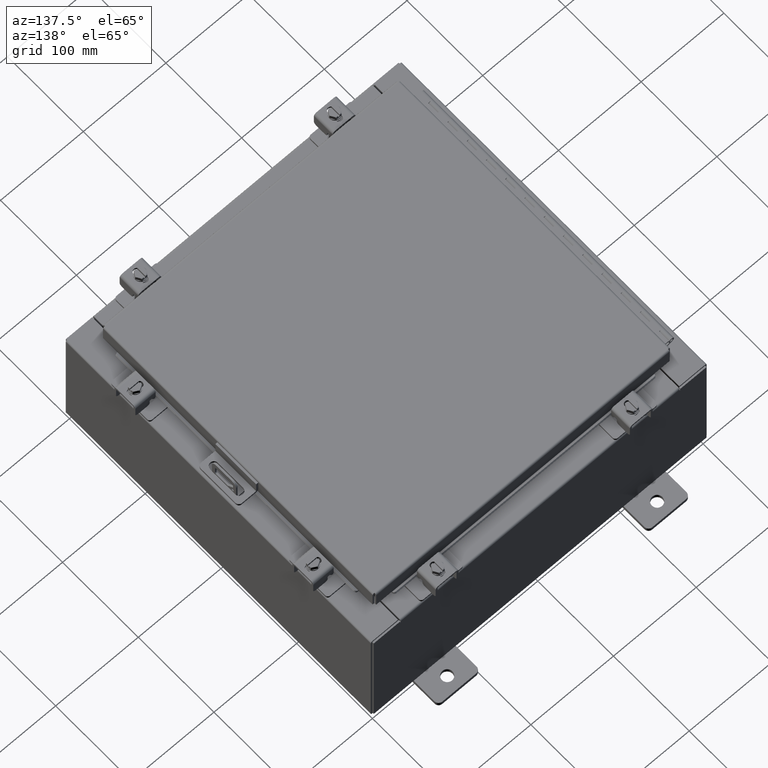
[diagram: clean part render]
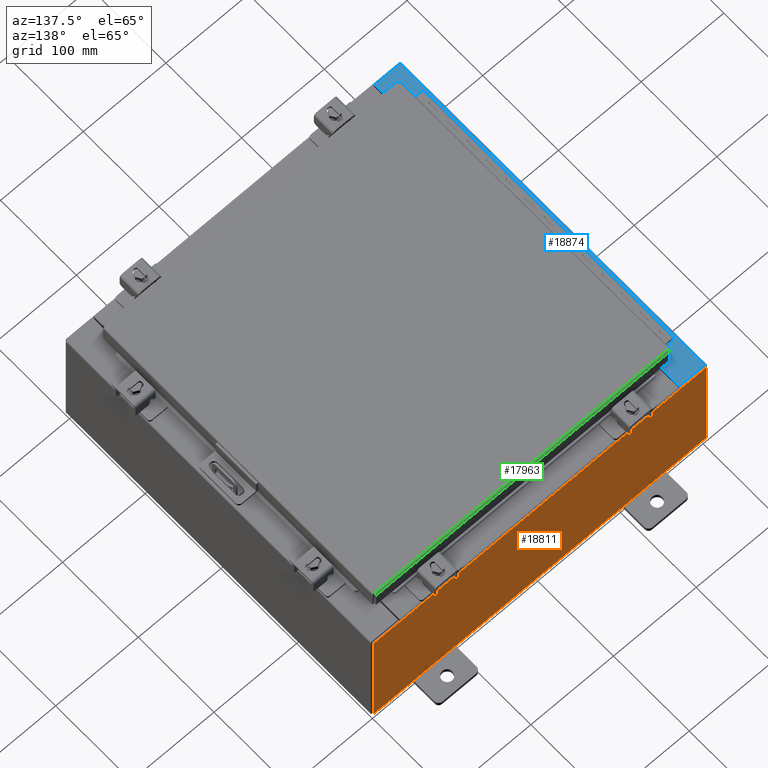
[diagram: same view with three faces highlighted in distinct colors, each labeled with its STEP entity id]
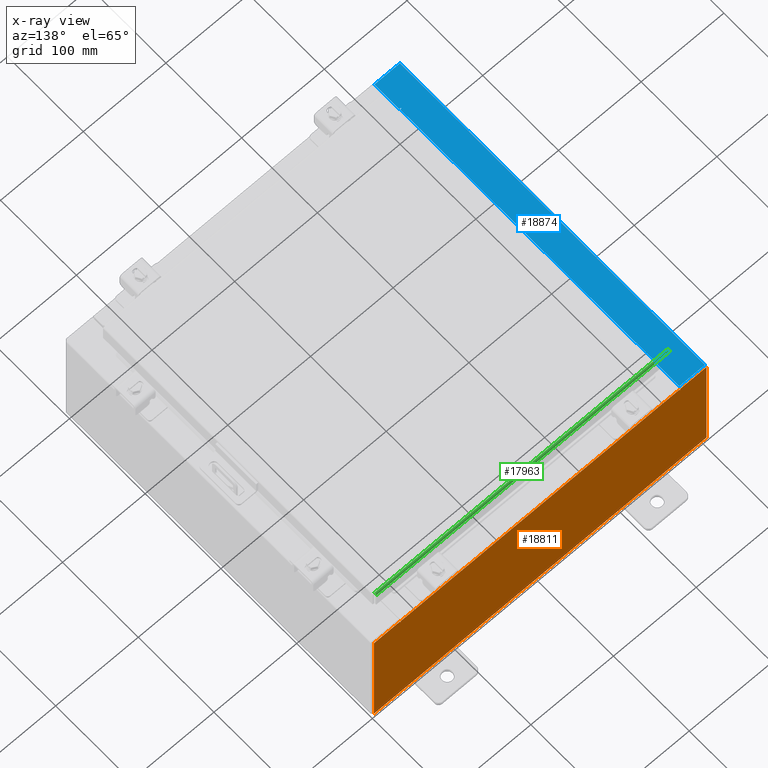
[diagram: x-ray of the same camera — body ghosted, the three highlighted faces saturated]
A machine part, auxiliary view with three faces highlighted in distinct colors.
The next image is the same camera in x-ray (body ghosted, the three faces saturated) — at least one of them is partly hidden behind the body in this view.
Their STEP definitions:

[orange] entity #18811 — the highlighted planar face has unit normal (0, -1, 0).
#38 = CARTESIAN_POINT ( 'NONE',  ( -7.925300000000000000, 0.0000000000000000000, 2.925300000000000500 ) ) ;
#591 = ORIENTED_EDGE ( 'NONE', *, *, #5917, .T. ) ;
#758 = DIRECTION ( 'NONE',  ( 0.0000000000000000000, -1.000000000000000000, 0.0000000000000000000 ) ) ;
#913 = CARTESIAN_POINT ( 'NONE',  ( 6.674549999999999100, 0.0000000000000000000, 2.874950000000000600 ) ) ;
#1453 = EDGE_CURVE ( 'NONE', #20270, #16970, #12450, .T. ) ;
#1989 = DIRECTION ( 'NONE',  ( -0.0000000000000000000, -0.0000000000000000000, 1.000000000000000000 ) ) ;
#2064 = LINE ( 'NONE', #14290, #12142 ) ;
#2509 = CARTESIAN_POINT ( 'NONE',  ( 6.674549999999936900, -0.0000000000000000000, -1.448568502570928700E-013 ) ) ;
#2599 = FACE_OUTER_BOUND ( 'NONE', #17095, .T. ) ;
#2660 = CARTESIAN_POINT ( 'NONE',  ( 6.655874999999998200, 0.0000000000000000000, 2.874950000000000600 ) ) ;
#3574 = DIRECTION ( 'NONE',  ( -0.0000000000000000000, 1.000000000000000000, -0.0000000000000000000 ) ) ;
#3976 = EDGE_CURVE ( 'NONE', #26084, #8551, #12946, .T. ) ;
#4050 = EDGE_CURVE ( 'NONE', #23961, #16970, #5089, .T. ) ;
#4158 = VERTEX_POINT ( 'NONE', #24885 ) ;
#4416 = CARTESIAN_POINT ( 'NONE',  ( -7.925300000000000000, 0.0000000000000000000, 2.925300000000000500 ) ) ;
#4693 = DIRECTION ( 'NONE',  ( 0.0000000000000000000, 0.0000000000000000000, -1.000000000000000000 ) ) ;
#4926 = EDGE_CURVE ( 'NONE', #4158, #14544, #6294, .T. ) ;
#5089 = LINE ( 'NONE', #6096, #15788 ) ;
#5275 = LINE ( 'NONE', #14031, #11235 ) ;
#5342 = CARTESIAN_POINT ( 'NONE',  ( 6.637199999999999100, 0.0000000000000000000, 0.0000000000000000000 ) ) ;
#5364 = CARTESIAN_POINT ( 'NONE',  ( 6.674549999999999100, 0.0000000000000000000, 2.925300000000000500 ) ) ;
#5800 = AXIS2_PLACEMENT_3D ( 'NONE', #2660, #16737, #4693 ) ;
#5917 = EDGE_CURVE ( 'NONE', #21409, #26084, #21713, .T. ) ;
#6071 = CARTESIAN_POINT ( 'NONE',  ( -6.637200000000000900, -0.0000000000000000000, 0.0000000000000000000 ) ) ;
#6096 = CARTESIAN_POINT ( 'NONE',  ( -6.637200000000000900, -1.707404996040164500E-016, 2.912300000000000600 ) ) ;
#6162 = LINE ( 'NONE', #2509, #16234 ) ;
#6294 = LINE ( 'NONE', #13186, #21762 ) ;
#7856 = DIRECTION ( 'NONE',  ( -1.000000000000000000, -0.0000000000000000000, -0.0000000000000000000 ) ) ;
#7869 = AXIS2_PLACEMENT_3D ( 'NONE', #15608, #3574, #17646 ) ;
#7987 = ORIENTED_EDGE ( 'NONE', *, *, #9720, .F. ) ;
#8094 = DIRECTION ( 'NONE',  ( 0.0000000000000000000, 0.0000000000000000000, -1.000000000000000000 ) ) ;
#8396 = CARTESIAN_POINT ( 'NONE',  ( 6.637199999999999100, 0.0000000000000000000, 2.912300000000000600 ) ) ;
#8551 = VERTEX_POINT ( 'NONE', #15045 ) ;
#8820 = CARTESIAN_POINT ( 'NONE',  ( 7.925300000000000000, 0.0000000000000000000, 2.925300000000000500 ) ) ;
#8873 = CARTESIAN_POINT ( 'NONE',  ( 6.637199999999997300, 0.0000000000000000000, 2.874950000000000600 ) ) ;
#9647 = ORIENTED_EDGE ( 'NONE', *, *, #3976, .T. ) ;
#9720 = EDGE_CURVE ( 'NONE', #19692, #20270, #14426, .T. ) ;
#10061 = EDGE_CURVE ( 'NONE', #14330, #21409, #18850, .T. ) ;
#10595 = ORIENTED_EDGE ( 'NONE', *, *, #16932, .T. ) ;
#10843 = LINE ( 'NONE', #6071, #20968 ) ;
#11235 = VECTOR ( 'NONE', #1989, 39.37007874015748100 ) ;
#11658 = ORIENTED_EDGE ( 'NONE', *, *, #12041, .F. ) ;
#12041 = EDGE_CURVE ( 'NONE', #23961, #15565, #10843, .T. ) ;
#12142 = VECTOR ( 'NONE', #16314, 39.37007874015748100 ) ;
#12450 = LINE ( 'NONE', #5342, #17169 ) ;
#12738 = CIRCLE ( 'NONE', #7869, 0.01867500000000003900 ) ;
#12743 = DIRECTION ( 'NONE',  ( 0.0000000000000000000, 0.0000000000000000000, 1.000000000000000000 ) ) ;
#12800 = CARTESIAN_POINT ( 'NONE',  ( 0.0000000000000000000, 0.0000000000000000000, 0.0000000000000000000 ) ) ;
#12946 = LINE ( 'NONE', #21983, #22429 ) ;
#13186 = CARTESIAN_POINT ( 'NONE',  ( -6.674550000000000900, -0.0000000000000000000, 0.0000000000000000000 ) ) ;
#13188 = EDGE_CURVE ( 'NONE', #15565, #4158, #12738, .T. ) ;
#13746 = CARTESIAN_POINT ( 'NONE',  ( -6.637200000000000900, -0.0000000000000000000, 2.874950000000000600 ) ) ;
#13996 = VERTEX_POINT ( 'NONE', #4416 ) ;
#14031 = CARTESIAN_POINT ( 'NONE',  ( -7.925300000000000000, 0.0000000000000000000, 2.925300000000000500 ) ) ;
#14082 = DIRECTION ( 'NONE',  ( 1.000000000000000000, 0.0000000000000000000, 0.0000000000000000000 ) ) ;
#14197 = ORIENTED_EDGE ( 'NONE', *, *, #10061, .T. ) ;
#14290 = CARTESIAN_POINT ( 'NONE',  ( -7.925300000000000000, 0.0000000000000000000, 2.925300000000000500 ) ) ;
#14330 = VERTEX_POINT ( 'NONE', #5364 ) ;
#14426 = CIRCLE ( 'NONE', #5800, 0.01867500000000003900 ) ;
#14544 = VERTEX_POINT ( 'NONE', #16001 ) ;
#14815 = DIRECTION ( 'NONE',  ( 0.0000000000000000000, -0.0000000000000000000, -1.000000000000000000 ) ) ;
#14936 = EDGE_CURVE ( 'NONE', #8551, #13996, #5275, .T. ) ;
#15045 = CARTESIAN_POINT ( 'NONE',  ( -7.925300000000000000, 0.0000000000000000000, -2.925299999999999600 ) ) ;
#15295 = DIRECTION ( 'NONE',  ( 0.0000000000000000000, 0.0000000000000000000, 1.000000000000000000 ) ) ;
#15405 = CARTESIAN_POINT ( 'NONE',  ( 7.925300000000000000, 0.0000000000000000000, -2.925299999999999600 ) ) ;
#15565 = VERTEX_POINT ( 'NONE', #13746 ) ;
#15608 = CARTESIAN_POINT ( 'NONE',  ( -6.655875000000000900, 0.0000000000000000000, 2.874950000000000600 ) ) ;
#15788 = VECTOR ( 'NONE', #22232, 39.37007874015748100 ) ;
#16001 = CARTESIAN_POINT ( 'NONE',  ( -6.674550000000000900, 0.0000000000000000000, 2.925300000000000500 ) ) ;
#16234 = VECTOR ( 'NONE', #16579, 39.37007874015748100 ) ;
#16314 = DIRECTION ( 'NONE',  ( 1.000000000000000000, 0.0000000000000000000, 0.0000000000000000000 ) ) ;
#16579 = DIRECTION ( 'NONE',  ( -2.170286390200002500E-014, 0.0000000000000000000, -1.000000000000000000 ) ) ;
#16737 = DIRECTION ( 'NONE',  ( -0.0000000000000000000, 1.000000000000000000, -0.0000000000000000000 ) ) ;
#16834 = DIRECTION ( 'NONE',  ( 0.0000000000000000000, 0.0000000000000000000, -1.000000000000000000 ) ) ;
#16932 = EDGE_CURVE ( 'NONE', #13996, #14544, #2064, .T. ) ;
#16962 = ORIENTED_EDGE ( 'NONE', *, *, #4050, .T. ) ;
#16970 = VERTEX_POINT ( 'NONE', #8396 ) ;
#17012 = EDGE_CURVE ( 'NONE', #14330, #19692, #6162, .T. ) ;
#17095 = EDGE_LOOP ( 'NONE', ( #19044, #25960, #11658, #16962, #18695, #7987, #24705, #14197, #591, #9647, #23092, #10595 ) ) ;
#17169 = VECTOR ( 'NONE', #12743, 39.37007874015748100 ) ;
#17579 = AXIS2_PLACEMENT_3D ( 'NONE', #12800, #758, #14815 ) ;
#17646 = DIRECTION ( 'NONE',  ( 0.0000000000000000000, 0.0000000000000000000, -1.000000000000000000 ) ) ;
#18221 = VECTOR ( 'NONE', #14082, 39.37007874015748100 ) ;
#18695 = ORIENTED_EDGE ( 'NONE', *, *, #1453, .F. ) ;
#18800 = PLANE ( 'NONE',  #17579 ) ;
#18811 = ADVANCED_FACE ( 'NONE', ( #2599 ), #18800, .F. ) ;
#18850 = LINE ( 'NONE', #38, #18221 ) ;
#18871 = CARTESIAN_POINT ( 'NONE',  ( 7.925300000000000000, 0.0000000000000000000, 2.925300000000000500 ) ) ;
#19044 = ORIENTED_EDGE ( 'NONE', *, *, #4926, .F. ) ;
#19692 = VERTEX_POINT ( 'NONE', #913 ) ;
#20270 = VERTEX_POINT ( 'NONE', #8873 ) ;
#20968 = VECTOR ( 'NONE', #8094, 39.37007874015748100 ) ;
#21071 = VECTOR ( 'NONE', #16834, 39.37007874015748100 ) ;
#21409 = VERTEX_POINT ( 'NONE', #8820 ) ;
#21713 = LINE ( 'NONE', #18871, #21071 ) ;
#21762 = VECTOR ( 'NONE', #15295, 39.37007874015748100 ) ;
#21983 = CARTESIAN_POINT ( 'NONE',  ( -7.925300000000000000, 0.0000000000000000000, -2.925299999999999600 ) ) ;
#22232 = DIRECTION ( 'NONE',  ( 1.000000000000000000, 0.0000000000000000000, 0.0000000000000000000 ) ) ;
#22429 = VECTOR ( 'NONE', #7856, 39.37007874015748100 ) ;
#23092 = ORIENTED_EDGE ( 'NONE', *, *, #14936, .T. ) ;
#23469 = CARTESIAN_POINT ( 'NONE',  ( -6.637200000000000900, -1.707404996040164500E-016, 2.912300000000000600 ) ) ;
#23961 = VERTEX_POINT ( 'NONE', #23469 ) ;
#24705 = ORIENTED_EDGE ( 'NONE', *, *, #17012, .F. ) ;
#24885 = CARTESIAN_POINT ( 'NONE',  ( -6.674550000000000900, 0.0000000000000000000, 2.874950000000000600 ) ) ;
#25960 = ORIENTED_EDGE ( 'NONE', *, *, #13188, .F. ) ;
#26084 = VERTEX_POINT ( 'NONE', #15405 ) ;

[blue] entity #18874 — the highlighted planar face has unit normal (0, 0, -1).
#837 = LINE ( 'NONE', #7416, #11523 ) ;
#881 = VERTEX_POINT ( 'NONE', #22694 ) ;
#1497 = CARTESIAN_POINT ( 'NONE',  ( -7.912300000000022300, 7.925299999999998200, 5.925299999999999100 ) ) ;
#1554 = CARTESIAN_POINT ( 'NONE',  ( -4.252457061908993700E-014, -7.925300000000000000, 5.925300000000056000 ) ) ;
#1669 = AXIS2_PLACEMENT_3D ( 'NONE', #11174, #25333, #13214 ) ;
#1834 = EDGE_CURVE ( 'NONE', #24067, #881, #4881, .T. ) ;
#2000 = ORIENTED_EDGE ( 'NONE', *, *, #15513, .T. ) ;
#3067 = DIRECTION ( 'NONE',  ( 6.893992640440775600E-017, 1.000000000000000000, 4.917321139196952400E-031 ) ) ;
#3461 = VERTEX_POINT ( 'NONE', #8316 ) ;
#3468 = CARTESIAN_POINT ( 'NONE',  ( -6.750050000000023000, -6.631099999999999100, 5.925300000000008000 ) ) ;
#3887 = VERTEX_POINT ( 'NONE', #21810 ) ;
#4614 = LINE ( 'NONE', #1554, #9333 ) ;
#4646 = CARTESIAN_POINT ( 'NONE',  ( -6.712700000000023000, 6.593749999999999100, 5.925300000000008000 ) ) ;
#4881 = LINE ( 'NONE', #8799, #9606 ) ;
#4942 = VECTOR ( 'NONE', #23795, 39.37007874015748100 ) ;
#4980 = DIRECTION ( 'NONE',  ( -1.000000000000000000, 0.0000000000000000000, -7.132762385546378400E-015 ) ) ;
#5158 = LINE ( 'NONE', #4646, #15857 ) ;
#5196 = CARTESIAN_POINT ( 'NONE',  ( -6.699700000000021300, -3.231034617030575100E-030, 5.925300000000008000 ) ) ;
#5479 = VECTOR ( 'NONE', #17781, 39.37007874015748100 ) ;
#6915 = EDGE_CURVE ( 'NONE', #20729, #25299, #15003, .T. ) ;
#7325 = FACE_OUTER_BOUND ( 'NONE', #12552, .T. ) ;
#7393 = LINE ( 'NONE', #23930, #18118 ) ;
#7416 = CARTESIAN_POINT ( 'NONE',  ( -6.699700000000021300, 6.631100000000000000, 5.925300000000008000 ) ) ;
#7653 = ORIENTED_EDGE ( 'NONE', *, *, #21569, .F. ) ;
#7669 = CARTESIAN_POINT ( 'NONE',  ( -6.699700000000021300, -7.925300000000000000, 5.925300000000008000 ) ) ;
#7850 = VERTEX_POINT ( 'NONE', #12878 ) ;
#8059 = ORIENTED_EDGE ( 'NONE', *, *, #23858, .F. ) ;
#8316 = CARTESIAN_POINT ( 'NONE',  ( -6.699700000000021300, 6.631100000000000000, 5.925300000000008000 ) ) ;
#8799 = CARTESIAN_POINT ( 'NONE',  ( -6.699700000000021300, -3.231034617030575100E-030, 5.925300000000008000 ) ) ;
#9292 = VECTOR ( 'NONE', #3067, 39.37007874015748100 ) ;
#9333 = VECTOR ( 'NONE', #25799, 39.37007874015748100 ) ;
#9374 = VERTEX_POINT ( 'NONE', #15622 ) ;
#9606 = VECTOR ( 'NONE', #10913, 39.37007874015748100 ) ;
#9671 = CARTESIAN_POINT ( 'NONE',  ( -6.750050000000023000, 6.593749999999999100, 5.925300000000008000 ) ) ;
#10260 = EDGE_CURVE ( 'NONE', #16642, #22008, #13777, .T. ) ;
#10631 = CARTESIAN_POINT ( 'NONE',  ( -6.750050000000023000, -6.612424999999998200, 5.925300000000008000 ) ) ;
#10636 = ORIENTED_EDGE ( 'NONE', *, *, #10260, .F. ) ;
#10854 = CARTESIAN_POINT ( 'NONE',  ( -6.712700000000023000, 6.593749999999999100, 5.925300000000008000 ) ) ;
#10913 = DIRECTION ( 'NONE',  ( -4.822655666717293700E-031, 1.000000000000000000, -3.439885693800320600E-045 ) ) ;
#11174 = CARTESIAN_POINT ( 'NONE',  ( -6.750050000000023000, 6.612424999999998200, 5.925300000000008000 ) ) ;
#11447 = LINE ( 'NONE', #15752, #5479 ) ;
#11523 = VECTOR ( 'NONE', #21536, 39.37007874015748100 ) ;
#11760 = CARTESIAN_POINT ( 'NONE',  ( -6.712700000000023000, -6.593749999999999100, 5.925300000000008000 ) ) ;
#12480 = LINE ( 'NONE', #5196, #21970 ) ;
#12552 = EDGE_LOOP ( 'NONE', ( #7653, #16377, #25542, #22757, #2000, #24094, #21759, #10636, #14332, #16128, #21349, #8059 ) ) ;
#12627 = VERTEX_POINT ( 'NONE', #11760 ) ;
#12681 = DIRECTION ( 'NONE',  ( 1.000000000000000000, 0.0000000000000000000, 0.0000000000000000000 ) ) ;
#12878 = CARTESIAN_POINT ( 'NONE',  ( -7.912300000000022300, -7.925300000000000000, 5.925299999999999100 ) ) ;
#13073 = EDGE_CURVE ( 'NONE', #22008, #881, #15895, .T. ) ;
#13214 = DIRECTION ( 'NONE',  ( 1.000000000000000000, 0.0000000000000000000, 0.0000000000000000000 ) ) ;
#13777 = CIRCLE ( 'NONE', #24245, 0.01867500000000058700 ) ;
#14332 = ORIENTED_EDGE ( 'NONE', *, *, #18030, .F. ) ;
#14785 = VERTEX_POINT ( 'NONE', #1497 ) ;
#14999 = PLANE ( 'NONE',  #24364 ) ;
#15003 = LINE ( 'NONE', #9671, #4942 ) ;
#15257 = CARTESIAN_POINT ( 'NONE',  ( -6.750050000000023000, -6.631099999999999100, 5.925300000000008000 ) ) ;
#15513 = EDGE_CURVE ( 'NONE', #7850, #24067, #4614, .T. ) ;
#15622 = CARTESIAN_POINT ( 'NONE',  ( -6.750050000000023000, 6.631099999999998200, 5.925300000000008000 ) ) ;
#15752 = CARTESIAN_POINT ( 'NONE',  ( -6.712700000000023000, -6.593749999999999100, 5.925300000000008000 ) ) ;
#15857 = VECTOR ( 'NONE', #24842, 39.37007874015748100 ) ;
#15895 = LINE ( 'NONE', #15257, #26040 ) ;
#16128 = ORIENTED_EDGE ( 'NONE', *, *, #18293, .F. ) ;
#16377 = ORIENTED_EDGE ( 'NONE', *, *, #22546, .T. ) ;
#16642 = VERTEX_POINT ( 'NONE', #19543 ) ;
#17026 = DIRECTION ( 'NONE',  ( 7.132762385546378400E-015, 0.0000000000000000000, -1.000000000000000000 ) ) ;
#17247 = DIRECTION ( 'NONE',  ( -4.822655666717293700E-031, 1.000000000000000000, -3.439885693800320600E-045 ) ) ;
#17291 = DIRECTION ( 'NONE',  ( 1.000000000000000000, -2.170286390199955400E-014, 0.0000000000000000000 ) ) ;
#17449 = EDGE_CURVE ( 'NONE', #3887, #14785, #7393, .T. ) ;
#17781 = DIRECTION ( 'NONE',  ( -1.000000000000000000, 0.0000000000000000000, 0.0000000000000000000 ) ) ;
#18030 = EDGE_CURVE ( 'NONE', #12627, #16642, #11447, .T. ) ;
#18118 = VECTOR ( 'NONE', #19859, 39.37007874015748100 ) ;
#18293 = EDGE_CURVE ( 'NONE', #25299, #12627, #5158, .T. ) ;
#18874 = ADVANCED_FACE ( 'NONE', ( #7325 ), #14999, .F. ) ;
#19543 = CARTESIAN_POINT ( 'NONE',  ( -6.750050000000023000, -6.593749999999999100, 5.925300000000008000 ) ) ;
#19859 = DIRECTION ( 'NONE',  ( -1.000000000000000000, -6.146651423996189400E-032, -7.132762385546378400E-015 ) ) ;
#20039 = LINE ( 'NONE', #25201, #9292 ) ;
#20581 = CARTESIAN_POINT ( 'NONE',  ( -6.750050000000023000, 6.593749999999999100, 5.925300000000008000 ) ) ;
#20729 = VERTEX_POINT ( 'NONE', #20581 ) ;
#20943 = CIRCLE ( 'NONE', #1669, 0.01867500000000058700 ) ;
#21349 = ORIENTED_EDGE ( 'NONE', *, *, #6915, .F. ) ;
#21536 = DIRECTION ( 'NONE',  ( -1.000000000000000000, -2.170286390199955400E-014, 0.0000000000000000000 ) ) ;
#21569 = EDGE_CURVE ( 'NONE', #3461, #9374, #837, .T. ) ;
#21759 = ORIENTED_EDGE ( 'NONE', *, *, #13073, .F. ) ;
#21810 = CARTESIAN_POINT ( 'NONE',  ( -6.699700000000021300, 7.925299999999998200, 5.925300000000008000 ) ) ;
#21970 = VECTOR ( 'NONE', #17247, 39.37007874015748100 ) ;
#22008 = VERTEX_POINT ( 'NONE', #3468 ) ;
#22546 = EDGE_CURVE ( 'NONE', #3461, #3887, #12480, .T. ) ;
#22694 = CARTESIAN_POINT ( 'NONE',  ( -6.699700000000021300, -6.631100000000000900, 5.925300000000008000 ) ) ;
#22757 = ORIENTED_EDGE ( 'NONE', *, *, #23150, .F. ) ;
#23150 = EDGE_CURVE ( 'NONE', #7850, #14785, #20039, .T. ) ;
#23795 = DIRECTION ( 'NONE',  ( 1.000000000000000000, 0.0000000000000000000, 0.0000000000000000000 ) ) ;
#23858 = EDGE_CURVE ( 'NONE', #9374, #20729, #20943, .T. ) ;
#23930 = CARTESIAN_POINT ( 'NONE',  ( -4.252457061908993700E-014, 7.925299999999998200, 5.925300000000056000 ) ) ;
#24067 = VERTEX_POINT ( 'NONE', #7669 ) ;
#24094 = ORIENTED_EDGE ( 'NONE', *, *, #1834, .T. ) ;
#24245 = AXIS2_PLACEMENT_3D ( 'NONE', #10631, #24785, #12681 ) ;
#24364 = AXIS2_PLACEMENT_3D ( 'NONE', #25092, #17026, #4980 ) ;
#24785 = DIRECTION ( 'NONE',  ( -7.132762385546378400E-015, -0.0000000000000000000, 1.000000000000000000 ) ) ;
#24842 = DIRECTION ( 'NONE',  ( -0.0000000000000000000, -1.000000000000000000, -0.0000000000000000000 ) ) ;
#25092 = CARTESIAN_POINT ( 'NONE',  ( -4.252457061908993700E-014, 0.0000000000000000000, 5.925300000000056000 ) ) ;
#25201 = CARTESIAN_POINT ( 'NONE',  ( -7.912300000000021400, 7.925299999999998200, 5.925299999999999100 ) ) ;
#25299 = VERTEX_POINT ( 'NONE', #10854 ) ;
#25333 = DIRECTION ( 'NONE',  ( -7.132762385546378400E-015, -0.0000000000000000000, 1.000000000000000000 ) ) ;
#25542 = ORIENTED_EDGE ( 'NONE', *, *, #17449, .T. ) ;
#25799 = DIRECTION ( 'NONE',  ( 1.000000000000000000, 8.758115402030108600E-047, 7.132762385546378400E-015 ) ) ;
#26040 = VECTOR ( 'NONE', #17291, 39.37007874015748100 ) ;

[green] entity #17963 — the highlighted cylindrical surface (edge-blend (fillet) strip) has radius 2.2276 mm, axis along (1, 0, 0).
#1270 = EDGE_CURVE ( 'NONE', #22101, #5976, #11504, .T. ) ;
#1455 = CARTESIAN_POINT ( 'NONE',  ( -6.990300000000001300, 7.006300000000000400, 3.414809992080329000E-016 ) ) ;
#1574 = CARTESIAN_POINT ( 'NONE',  ( 6.989824110156776600, 7.060195747341798400, -0.01756921792167976500 ) ) ;
#1671 = CARTESIAN_POINT ( 'NONE',  ( -6.989633754219490800, 7.076430782078319700, -0.03380425265820009900 ) ) ;
#1994 = ORIENTED_EDGE ( 'NONE', *, *, #3232, .F. ) ;
#3232 = EDGE_CURVE ( 'NONE', #22101, #13566, #3896, .T. ) ;
#3606 = CARTESIAN_POINT ( 'NONE',  ( 6.990109644062712000, 7.029255289458310700, -0.002282596256188923000 ) ) ;
#3699 = CARTESIAN_POINT ( 'NONE',  ( -6.989348220313560000, 7.091717403743812700, -0.06474471054169121700 ) ) ;
#3896 = B_SPLINE_CURVE_WITH_KNOTS ( 'NONE', 3,
 ( #23698, #9577, #21665, #25746, #13607, #1574, #15639, #3606, #17670, #5609 ),
 .UNSPECIFIED., .F., .F.,
 ( 4, 2, 2, 2, 4 ),
 ( 0.0000000000000000000, 0.2500000000000000000, 0.5000000000000000000, 0.7500000000000000000, 1.000000000000000000 ),
 .UNSPECIFIED. ) ;
#4350 = ORIENTED_EDGE ( 'NONE', *, *, #21124, .F. ) ;
#5457 = CARTESIAN_POINT ( 'NONE',  ( 6.990299999999998600, 7.006300000000000400, -0.08770000000000030500 ) ) ;
#5609 = CARTESIAN_POINT ( 'NONE',  ( 6.990299999999998600, 7.006300000000000400, -2.048885995248197400E-016 ) ) ;
#5703 = CARTESIAN_POINT ( 'NONE',  ( -6.989157864376270600, 7.094000000000000300, -0.08770000000000007000 ) ) ;
#5976 = VERTEX_POINT ( 'NONE', #25171 ) ;
#8595 = CARTESIAN_POINT ( 'NONE',  ( -7.077999999999999400, 7.094000000000000300, -0.08770000000000007000 ) ) ;
#9098 = CARTESIAN_POINT ( 'NONE',  ( 6.990299999999998600, 7.006300000000000400, -2.048885995248197400E-016 ) ) ;
#9115 = EDGE_LOOP ( 'NONE', ( #4350, #1994, #17363, #18602 ) ) ;
#9422 = VECTOR ( 'NONE', #20073, 39.37007874015748100 ) ;
#9577 = CARTESIAN_POINT ( 'NONE',  ( 6.989253042344912200, 7.093999999999999400, -0.07622009684500735700 ) ) ;
#11504 = LINE ( 'NONE', #8595, #20989 ) ;
#11678 = CARTESIAN_POINT ( 'NONE',  ( -6.990109644062717300, 7.029255289458311600, -0.002282596256188923400 ) ) ;
#13566 = VERTEX_POINT ( 'NONE', #9098 ) ;
#13607 = CARTESIAN_POINT ( 'NONE',  ( 6.989633754219490800, 7.076430782078321400, -0.03380425265820009200 ) ) ;
#13667 = VERTEX_POINT ( 'NONE', #1455 ) ;
#13701 = CARTESIAN_POINT ( 'NONE',  ( -6.989824110156782000, 7.060195747341800200, -0.01756921792167976500 ) ) ;
#13817 = CARTESIAN_POINT ( 'NONE',  ( 6.989157864376268800, 7.094000000000000300, -0.08770000000000007000 ) ) ;
#14751 = LINE ( 'NONE', #24049, #9422 ) ;
#15639 = CARTESIAN_POINT ( 'NONE',  ( 6.989919288125422600, 7.050467384578529300, -0.01106893374133176100 ) ) ;
#15736 = CARTESIAN_POINT ( 'NONE',  ( -6.989538576250845700, 7.082931066258669100, -0.04353261542147223600 ) ) ;
#17363 = ORIENTED_EDGE ( 'NONE', *, *, #1270, .T. ) ;
#17670 = CARTESIAN_POINT ( 'NONE',  ( 6.990204822031355300, 7.017779903154993400, -2.038214714022946300E-016 ) ) ;
#17682 = CARTESIAN_POINT ( 'NONE',  ( -6.990300000000001300, 7.006300000000000400, 3.414809992080329000E-016 ) ) ;
#17764 = CARTESIAN_POINT ( 'NONE',  ( -6.989253042344914800, 7.094000000000000300, -0.07622009684500738500 ) ) ;
#17963 = ADVANCED_FACE ( 'NONE', ( #18090 ), #22207, .T. ) ;
#18090 = FACE_OUTER_BOUND ( 'NONE', #9115, .T. ) ;
#18602 = ORIENTED_EDGE ( 'NONE', *, *, #24920, .F. ) ;
#19569 = DIRECTION ( 'NONE',  ( 0.0000000000000000000, 1.000000000000000000, 2.725618009642215600E-015 ) ) ;
#19728 = CARTESIAN_POINT ( 'NONE',  ( -6.990204822031357100, 7.017779903154994300, -2.037881236484656600E-016 ) ) ;
#20073 = DIRECTION ( 'NONE',  ( -1.000000000000000000, -0.0000000000000000000, -0.0000000000000000000 ) ) ;
#20989 = VECTOR ( 'NONE', #22621, 39.37007874015748100 ) ;
#21124 = EDGE_CURVE ( 'NONE', #13566, #13667, #14751, .T. ) ;
#21665 = CARTESIAN_POINT ( 'NONE',  ( 6.989348220313559100, 7.091717403743812700, -0.06474471054169121700 ) ) ;
#21811 = AXIS2_PLACEMENT_3D ( 'NONE', #5457, #23546, #19569 ) ;
#22101 = VERTEX_POINT ( 'NONE', #13817 ) ;
#22207 = CYLINDRICAL_SURFACE ( 'NONE', #21811, 0.08770000000000026400 ) ;
#22621 = DIRECTION ( 'NONE',  ( -1.000000000000000000, -3.263953481728348700E-031, -8.896778645326842400E-046 ) ) ;
#23546 = DIRECTION ( 'NONE',  ( 1.000000000000000000, 0.0000000000000000000, 0.0000000000000000000 ) ) ;
#23698 = CARTESIAN_POINT ( 'NONE',  ( 6.989157864376268800, 7.094000000000000300, -0.08770000000000007000 ) ) ;
#24049 = CARTESIAN_POINT ( 'NONE',  ( 6.990299999999998600, 7.006300000000000400, -2.048885995248197400E-016 ) ) ;
#24788 = B_SPLINE_CURVE_WITH_KNOTS ( 'NONE', 3,
 ( #17682, #19728, #11678, #25837, #13701, #1671, #15736, #3699, #17764, #5703 ),
 .UNSPECIFIED., .F., .F.,
 ( 4, 2, 2, 2, 4 ),
 ( 0.0000000000000000000, 0.2500000000000000000, 0.5000000000000000000, 0.7500000000000000000, 1.000000000000000000 ),
 .UNSPECIFIED. ) ;
#24920 = EDGE_CURVE ( 'NONE', #13667, #5976, #24788, .T. ) ;
#25171 = CARTESIAN_POINT ( 'NONE',  ( -6.989157864376270600, 7.094000000000000300, -0.08770000000000007000 ) ) ;
#25746 = CARTESIAN_POINT ( 'NONE',  ( 6.989538576250843100, 7.082931066258667300, -0.04353261542147222900 ) ) ;
#25837 = CARTESIAN_POINT ( 'NONE',  ( -6.989919288125423500, 7.050467384578525700, -0.01106893374133176100 ) ) ;